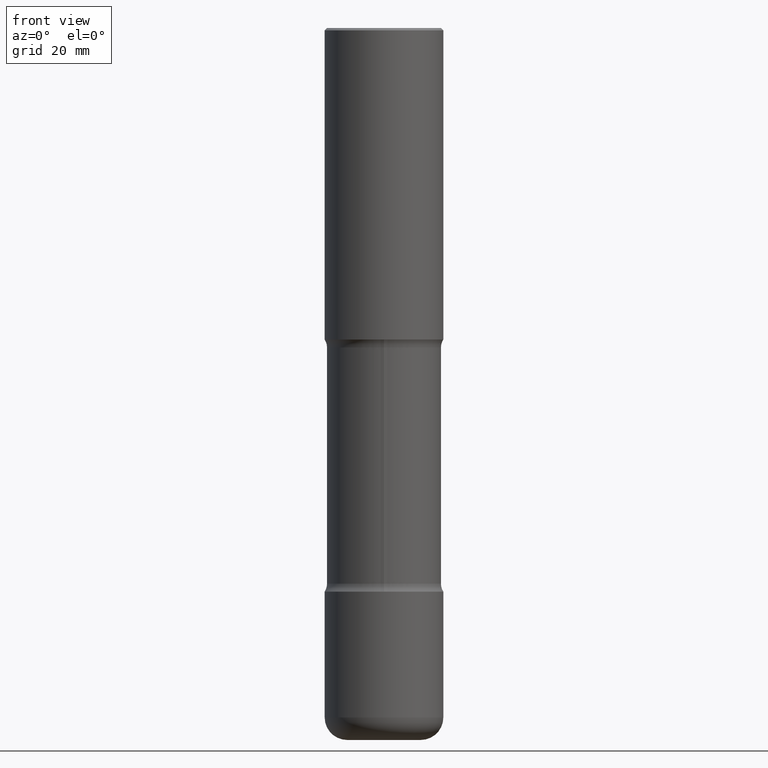
[diagram: clean part render]
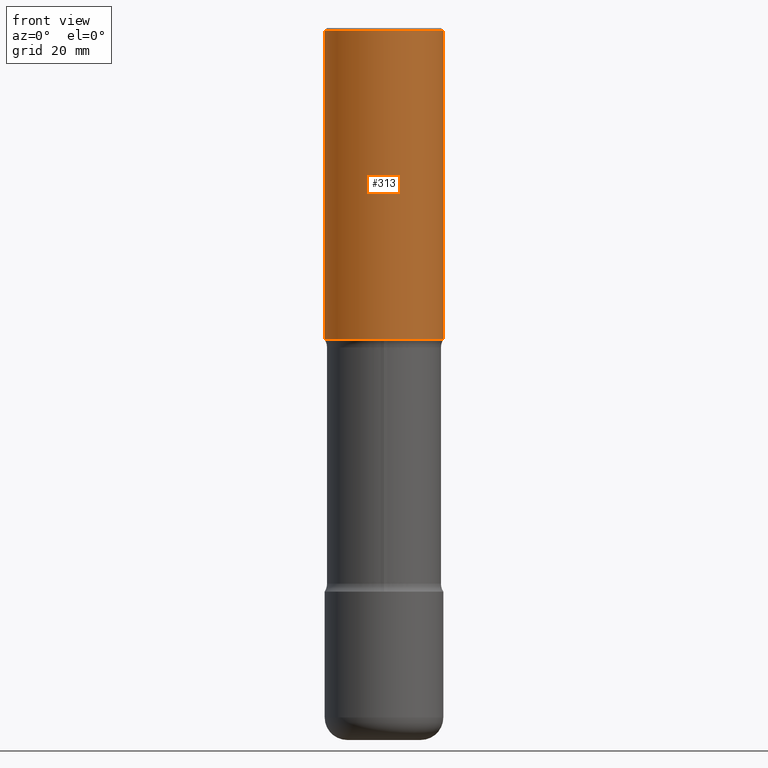
[diagram: same view with one face highlighted and labeled with its STEP entity id]
A machine part, front view. The second image highlights one B-rep face of the part: STEP entity #313.
In plain terms, the highlighted cylindrical surface (partial cylindrical patch) has radius 12.7 mm, axis along (-0, 0, 1).
Its self-contained STEP definition (entity closure, byte-faithful):
#7 = VECTOR ( 'NONE', #96, 39.37007874015748143 ) ;
#46 = AXIS2_PLACEMENT_3D ( 'NONE', #198, #203, #377 ) ;
#96 = DIRECTION ( 'NONE',  ( -2.445468806185136877E-29, 3.491481338843145188E-15, 1.000000000000000000 ) ) ;
#103 = FACE_OUTER_BOUND ( 'NONE', #224, .T. ) ;
#107 = VERTEX_POINT ( 'NONE', #488 ) ;
#115 = VECTOR ( 'NONE', #591, 39.37007874015748143 ) ;
#125 = VERTEX_POINT ( 'NONE', #441 ) ;
#148 = DIRECTION ( 'NONE',  ( 1.000000000000000000, -6.982962677686267499E-15, 4.876176775795936353E-29 ) ) ;
#163 = DIRECTION ( 'NONE',  ( -2.445468806185136597E-29, 3.491481338843145583E-15, 1.000000000000000000 ) ) ;
#198 = CARTESIAN_POINT ( 'NONE',  ( 6.419355616235984688E-29, -9.165138514463258190E-15, -2.625000000000000444 ) ) ;
#203 = DIRECTION ( 'NONE',  ( -2.445468806185136597E-29, 3.491481338843145583E-15, 1.000000000000000000 ) ) ;
#224 = EDGE_LOOP ( 'NONE', ( #632, #326, #584, #690 ) ) ;
#236 = DIRECTION ( 'NONE',  ( 1.000000000000000000, -6.982962677686266711E-15, 0.000000000000000000 ) ) ;
#238 = CARTESIAN_POINT ( 'NONE',  ( 0.4999999999999998335, -3.491481338843132566E-15, 2.438088387897967336E-29 ) ) ;
#298 = DIRECTION ( 'NONE',  ( -2.445468806185136597E-29, 3.491481338843145583E-15, 1.000000000000000000 ) ) ;
#303 = AXIS2_PLACEMENT_3D ( 'NONE', #403, #298, #236 ) ;
#306 = CIRCLE ( 'NONE', #303, 0.4999999999999996669 ) ;
#313 = ADVANCED_FACE ( 'NONE', ( #103 ), #792, .T. ) ;
#318 = EDGE_CURVE ( 'NONE', #125, #553, #306, .T. ) ;
#326 = ORIENTED_EDGE ( 'NONE', *, *, #417, .T. ) ;
#353 = CARTESIAN_POINT ( 'NONE',  ( -0.4999999999999998335, 3.552713678800499746E-15, -2.459467545127452330E-29 ) ) ;
#377 = DIRECTION ( 'NONE',  ( 1.000000000000000000, -6.982962677686266711E-15, 0.000000000000000000 ) ) ;
#403 = CARTESIAN_POINT ( 'NONE',  ( 4.890937612370299433E-31, -6.982962677686328587E-17, -0.02000000000000010797 ) ) ;
#407 = LINE ( 'NONE', #353, #7 ) ;
#410 = CARTESIAN_POINT ( 'NONE',  ( -0.5000000000000000000, -1.064770391819559223E-15, -2.625000000000000444 ) ) ;
#417 = EDGE_CURVE ( 'NONE', #687, #107, #772, .T. ) ;
#441 = CARTESIAN_POINT ( 'NONE',  ( -0.4999999999999996669, 3.421651712066267691E-15, -0.02000000000000010797 ) ) ;
#488 = CARTESIAN_POINT ( 'NONE',  ( 0.5000000000000000000, -1.265661985330639155E-14, -2.625000000000000444 ) ) ;
#553 = VERTEX_POINT ( 'NONE', #760 ) ;
#578 = EDGE_CURVE ( 'NONE', #687, #125, #407, .T. ) ;
#582 = EDGE_CURVE ( 'NONE', #107, #553, #707, .T. ) ;
#584 = ORIENTED_EDGE ( 'NONE', *, *, #582, .T. ) ;
#591 = DIRECTION ( 'NONE',  ( -2.445468806185136877E-29, 3.491481338843145188E-15, 1.000000000000000000 ) ) ;
#632 = ORIENTED_EDGE ( 'NONE', *, *, #578, .F. ) ;
#687 = VERTEX_POINT ( 'NONE', #410 ) ;
#690 = ORIENTED_EDGE ( 'NONE', *, *, #318, .F. ) ;
#707 = LINE ( 'NONE', #238, #115 ) ;
#720 = CARTESIAN_POINT ( 'NONE',  ( 0.000000000000000000, 0.000000000000000000, 0.000000000000000000 ) ) ;
#760 = CARTESIAN_POINT ( 'NONE',  ( 0.4999999999999996669, -3.500078625662626713E-15, -0.02000000000000010797 ) ) ;
#772 = CIRCLE ( 'NONE', #46, 0.5000000000000000000 ) ;
#792 = CYLINDRICAL_SURFACE ( 'NONE', #797, 0.4999999999999998335 ) ;
#797 = AXIS2_PLACEMENT_3D ( 'NONE', #720, #163, #148 ) ;